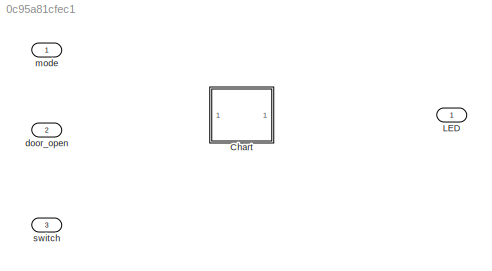
MODEL slx_0c95a81cfec1
KIND model
CONFIG AbsTol = auto
CONFIG EnableMultiTasking = off
CONFIG FixedStep = auto
CONFIG MaxStep = auto
CONFIG MinStep = auto
CONFIG RelTol = 1e-3
CONFIG SampleTimeConstraint = Unconstrained
CONFIG SolverName = VariableStepAuto
CONFIG StartTime = 0.0
CONFIG StopTime = 10.0
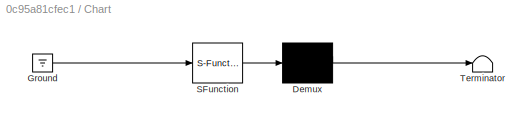
BLOCK [SubSystem] Chart
  ErrorFcn = Stateflow.Translate.translate
  PermitHierarchicalResolution = ExplicitOnly
  SFBlockType = Chart
  TreatAsAtomicUnit = on
BLOCK [Demux] Chart/ Demux 
  Outputs = 1
BLOCK [Ground] Chart/ Ground 
BLOCK [S-Function] Chart/ SFunction 
  EnableBusSupport = off
  FunctionName = sf_sfun
  PortCounts = [1 1]
  SFcnIsStateOwnerBlock = off
  SFunctionDeploymentMode = off
  Tag = Stateflow S-Function 3
BLOCK [Terminator] Chart/ Terminator 
BLOCK [Outport] LED
BLOCK [Inport] door_open
  Port = 2
BLOCK [Inport] mode
BLOCK [Inport] switch
  Port = 3
CHART Chart states=2 transitions=1
  STATE_LABEL 'Manual_Mode\n\nif switch == 1\n        LED = 1;\nelse\n    LED = 0;\nend\n'
  STATE_LABEL 'Auto_Mode\n\n    if door_open == 1\n        LED = 1;\n    else\n        LED = 0;\n    end\n'
CHART  states=0 transitions=0
